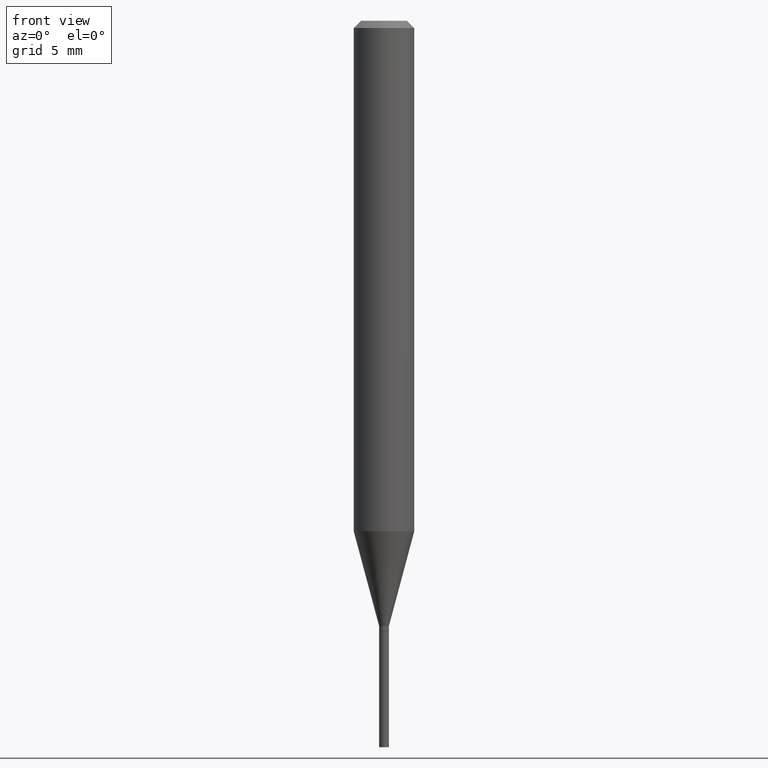
[diagram: clean part render]
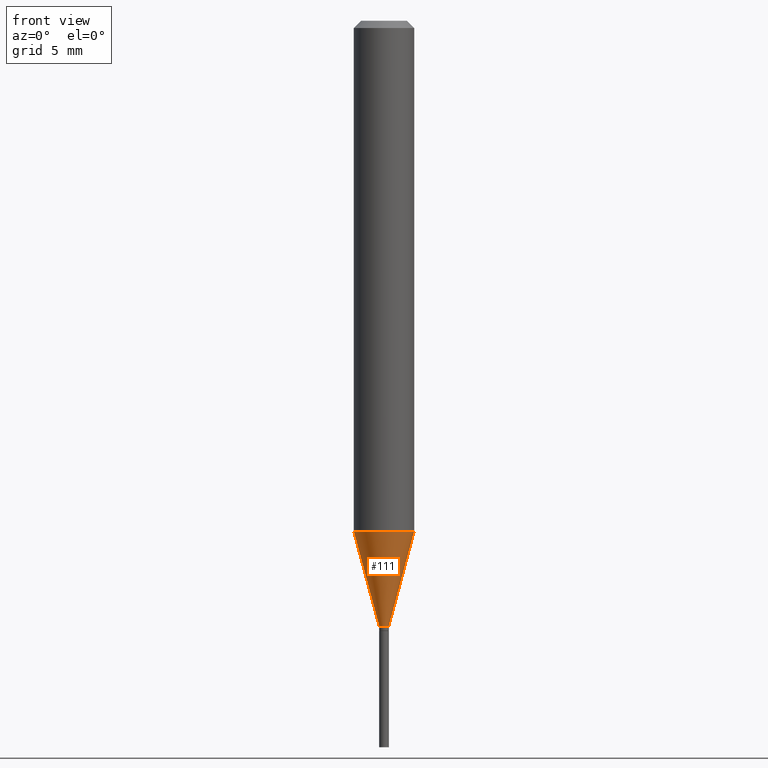
[diagram: same view with one face highlighted and labeled with its STEP entity id]
A machine part, front view. The second image highlights one B-rep face of the part: STEP entity #111.
In plain terms, the highlighted conical surface has half-angle 15 deg.
Its self-contained STEP definition (entity closure, byte-faithful):
#3 = CONICAL_SURFACE ( 'NONE', #269, 0.009999999999999923880, 0.2617993877991500740 ) ;
#7 = EDGE_LOOP ( 'NONE', ( #407, #321, #293, #118 ) ) ;
#8 = CARTESIAN_POINT ( 'NONE',  ( -0.06250000000000000000, -3.236167211816206291E-15, -1.054067332602634188 ) ) ;
#37 = CARTESIAN_POINT ( 'NONE',  ( 2.577688781498515070E-29, -3.680256421666268512E-15, -1.054067332602634188 ) ) ;
#49 = VERTEX_POINT ( 'NONE', #8 ) ;
#58 = EDGE_CURVE ( 'NONE', #95, #303, #436, .T. ) ;
#61 = CARTESIAN_POINT ( 'NONE',  ( -0.009999999999999923880, -4.293297399977923178E-15, -1.250000000000000000 ) ) ;
#79 = DIRECTION ( 'NONE',  ( 1.000000000000000000, -6.982962677686239889E-15, 0.000000000000000000 ) ) ;
#95 = VERTEX_POINT ( 'NONE', #356 ) ;
#102 = DIRECTION ( 'NONE',  ( -2.445468806185136597E-29, 3.491481338843145583E-15, 1.000000000000000000 ) ) ;
#107 = DIRECTION ( 'NONE',  ( 1.000000000000000000, -6.982962677686270655E-15, 0.000000000000000000 ) ) ;
#111 = ADVANCED_FACE ( 'NONE', ( #147 ), #3, .T. ) ;
#114 = DIRECTION ( 'NONE',  ( -2.445468806185136597E-29, 3.491481338843145583E-15, 1.000000000000000000 ) ) ;
#118 = ORIENTED_EDGE ( 'NONE', *, *, #216, .F. ) ;
#147 = FACE_OUTER_BOUND ( 'NONE', #7, .T. ) ;
#152 = VECTOR ( 'NONE', #279, 39.37007874015747433 ) ;
#166 = AXIS2_PLACEMENT_3D ( 'NONE', #37, #290, #107 ) ;
#177 = DIRECTION ( 'NONE',  ( 1.000000000000000000, -6.982962677686239889E-15, 0.000000000000000000 ) ) ;
#178 = CIRCLE ( 'NONE', #166, 0.06250000000000000000 ) ;
#213 = AXIS2_PLACEMENT_3D ( 'NONE', #333, #114, #79 ) ;
#216 = EDGE_CURVE ( 'NONE', #49, #303, #178, .T. ) ;
#225 = CARTESIAN_POINT ( 'NONE',  ( 0.06250000000000000000, -4.116691589021660182E-15, -1.054067332602634188 ) ) ;
#229 = CARTESIAN_POINT ( 'NONE',  ( 0.009999999999999923880, -4.434181300330794192E-15, -1.250000000000000000 ) ) ;
#242 = EDGE_CURVE ( 'NONE', #394, #95, #257, .T. ) ;
#257 = CIRCLE ( 'NONE', #213, 0.009999999999999923880 ) ;
#269 = AXIS2_PLACEMENT_3D ( 'NONE', #421, #102, #177 ) ;
#274 = DIRECTION ( 'NONE',  ( 0.2588190451025213501, 1.565188264969621968E-15, 0.9659258262890682012 ) ) ;
#279 = DIRECTION ( 'NONE',  ( -0.2588190451025213501, 5.211531920934551042E-15, 0.9659258262890682012 ) ) ;
#290 = DIRECTION ( 'NONE',  ( -2.445468806185136597E-29, 3.491481338843145583E-15, 1.000000000000000000 ) ) ;
#293 = ORIENTED_EDGE ( 'NONE', *, *, #58, .T. ) ;
#303 = VERTEX_POINT ( 'NONE', #225 ) ;
#321 = ORIENTED_EDGE ( 'NONE', *, *, #242, .T. ) ;
#333 = CARTESIAN_POINT ( 'NONE',  ( 3.056836007731421306E-29, -4.364351673553932471E-15, -1.250000000000000000 ) ) ;
#334 = EDGE_CURVE ( 'NONE', #394, #49, #359, .T. ) ;
#356 = CARTESIAN_POINT ( 'NONE',  ( 0.009999999999999923880, -4.434181300330794192E-15, -1.250000000000000000 ) ) ;
#359 = LINE ( 'NONE', #61, #152 ) ;
#394 = VERTEX_POINT ( 'NONE', #439 ) ;
#407 = ORIENTED_EDGE ( 'NONE', *, *, #334, .F. ) ;
#421 = CARTESIAN_POINT ( 'NONE',  ( 3.056836007731421306E-29, -4.364351673553932471E-15, -1.250000000000000000 ) ) ;
#436 = LINE ( 'NONE', #229, #453 ) ;
#439 = CARTESIAN_POINT ( 'NONE',  ( -0.009999999999999923880, -3.764732305897064537E-15, -1.250000000000000000 ) ) ;
#453 = VECTOR ( 'NONE', #274, 39.37007874015747433 ) ;